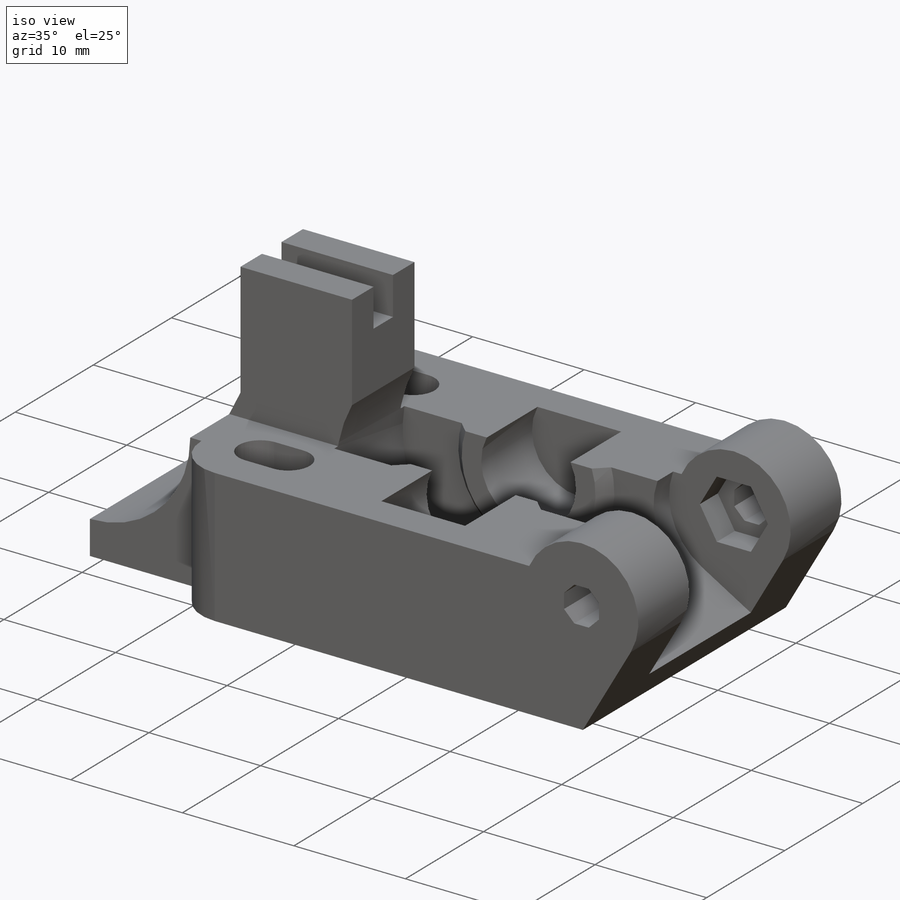
[diagram: iso view]
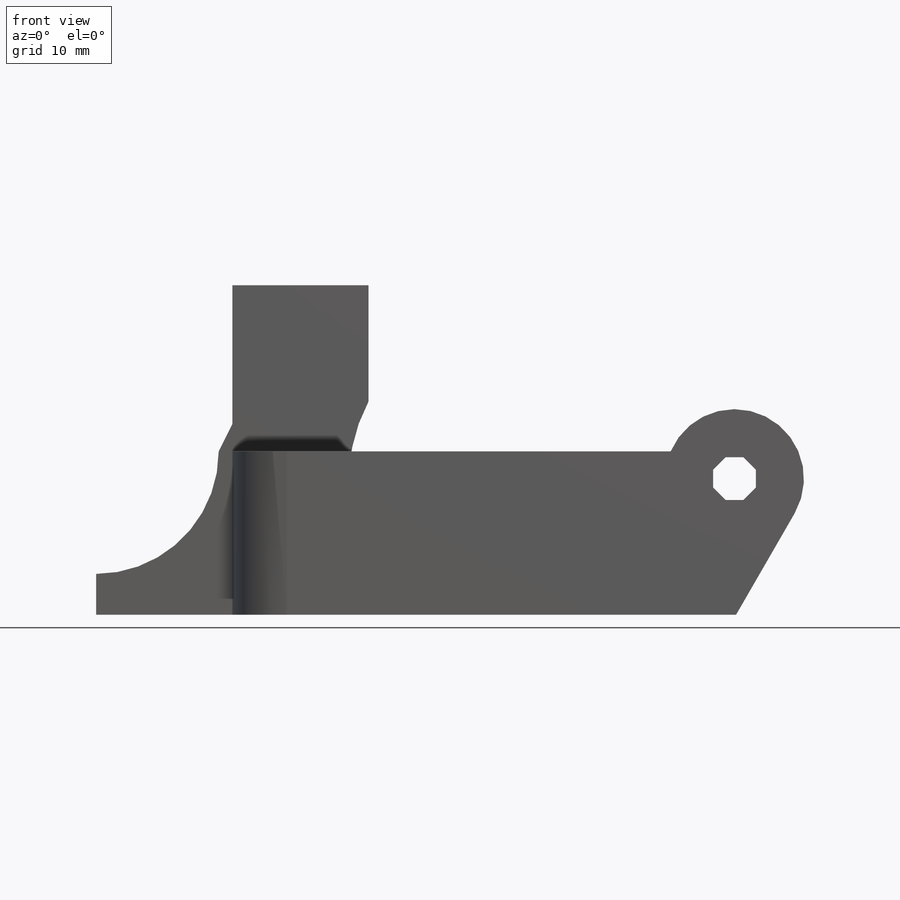
[diagram: front view]
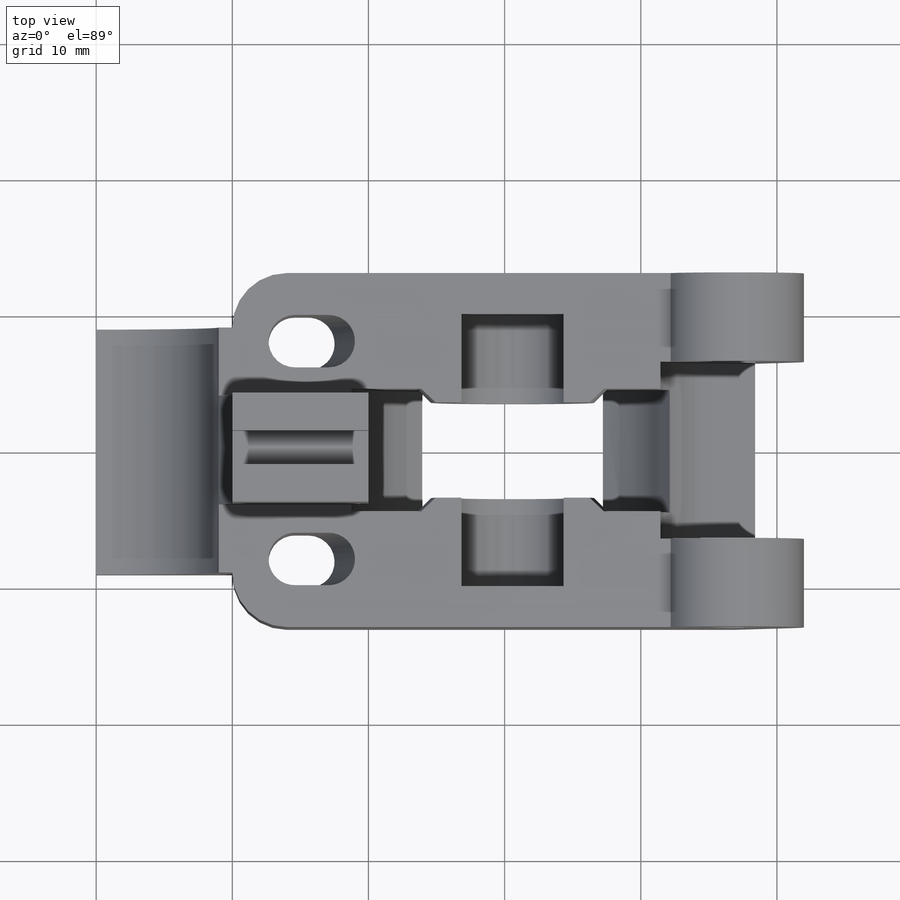
[diagram: top view]
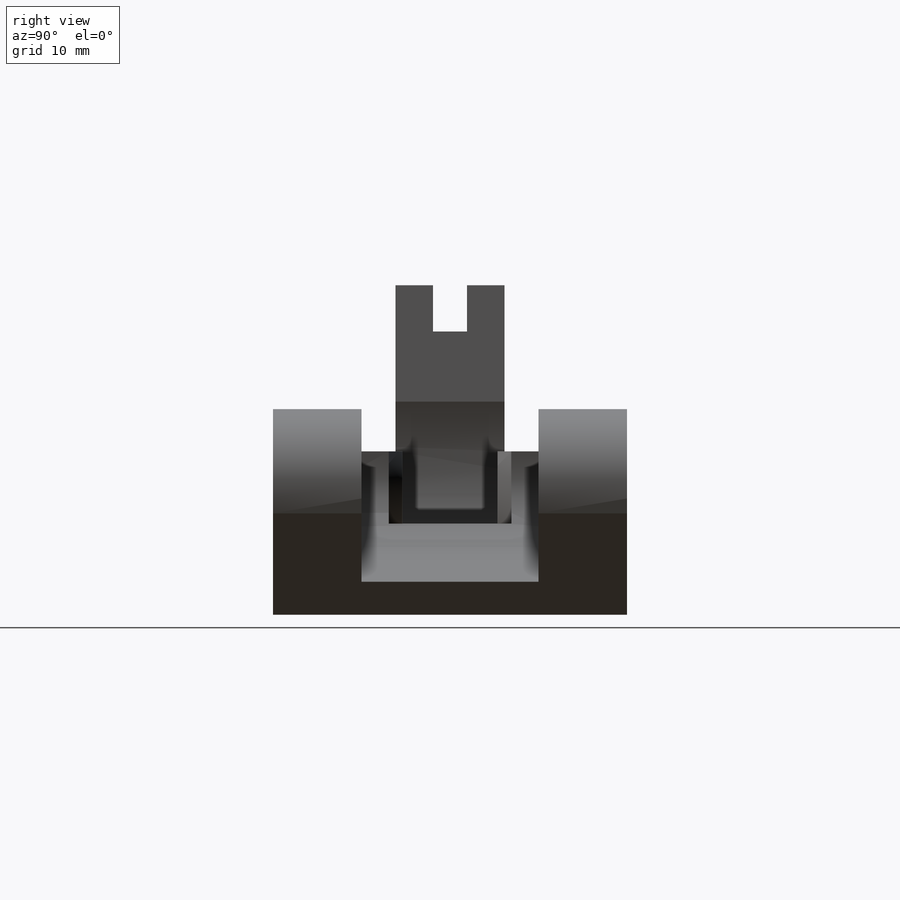
[diagram: right view]
SOLIDWORKS PART (.sldprt)
format: sldprt  version: not decoded by parser v0  size: 417,280 bytes
history: native  units: mm
features: sketch x15, cut_extrude x7, extrude x4, material x1, plane x1, revolve x1, fillet x1, mirror x1 (+11 scaffold rows collapsed)
feature tree (42):
  scaffold x11  (default folders/planes/origin — collapsed)
  material  "Material <not specified>"
  sketch  "Sketch1"  dims[c1.D1=~21.990184mm c1.D2=8.5mm c1.D3=~86.32402mm c2.D3=120.0deg c2.D4=37.0mm c2.D5=12.0mm c2.D6=10.0mm c2.D7=~10.011216mm c2.D2=10.0mm c3.D7=16.3mm]
  sketch  "Sketch2"
  extrude  "Boss-Extrude1"  Depth=26mm
  sketch  "Sketch12"  dims[c1.D1=~6.064536mm c1.D2=~8.956612mm c2.D1=8.0mm c2.D2=10.0mm]
  extrude  "Boss-Extrude2"  Depth=12.2mm
  sketch  "Sketch13"  dims[c1.D1=~2.882534mm c1.D2=~2.493003mm c2.D1=3.4mm c2.D2=2.5mm]
  cut_extrude  "Cut-Extrude8"  [1 undecoded]
  sketch  "Sketch3"  dims[D1=24.0mm]
  cut_extrude  "Cut-Extrude1"  Depth=9mm
  sketch  "Sketch4"  dims[D1=8.5mm]
  cut_extrude  "Cut-Extrude2"  Depth=5.5mm
  plane  "Plane1"
  sketch  "Sketch6"  dims[c1.D1=1.0mm c1.D2=~2.316665mm c2.D2=45.0deg c2.D3=7.0mm c2.D4=~7.322242mm]
  revolve  "Revolve1"  Angle=360deg
  sketch  "Sketch7"  dims[D1=0.0mm]
  cut_extrude  "Cut-Extrude3"  [1 undecoded]
  sketch  "Sketch8"  dims[D1=~11.051915mm D2=~0.035522mm]
  cut_extrude  "Cut-Extrude4"  Depth=6.5mm
  sketch  "Sketch9"  dims[D1=3.4mm]
  cut_extrude  "Cut-Extrude5"  [1 undecoded]
  sketch  "Sketch10"  dims[D1=6.1mm]
  cut_extrude  "Cut-Extrude6"  Depth=2.3mm
  sketch  "Sketch11"  dims[D1=4.85mm D2=3.85mm D3=5.0mm D4=15.5mm D5=~52.02914mm]
  sketch  "Sketch17"  dims[D1=1.5mm]
  fillet  "Fillet1"  Radius=4mm
  mirror  "Mirror8"
  sketch  "Sketch14"  dims[c1.D1=~11.405867mm c1.D2=9.0mm c2.D1=1.0mm c2.D3=3.0mm]
  extrude  "Boss-Extrude3"  Depth=18mm
  sketch  "Sketch15"  dims[D1=2.0mm]
  extrude  "Boss-Extrude4"  [1 undecoded]
decode coverage: 23 of 29 modeling features carry decoded parameters
note: ~ marks probable driven/reference dimensions
note: 4 parameter values undecoded
summary: no parameter record found for 4 features
note: suppression state not decoded; provenance and decode notes live in map.json
